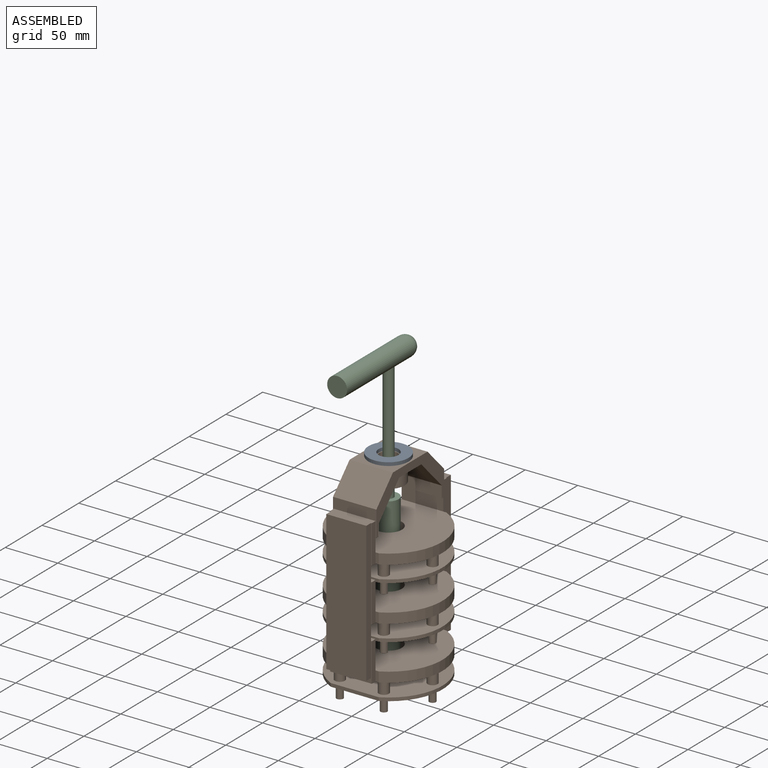
[diagram: assembled view]
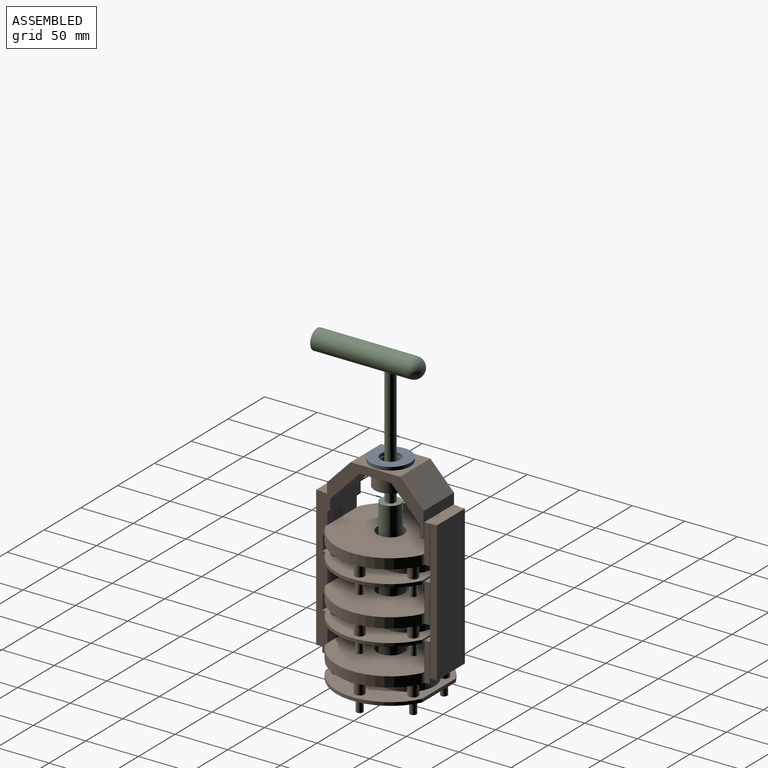
[diagram: assembled view, second angle]
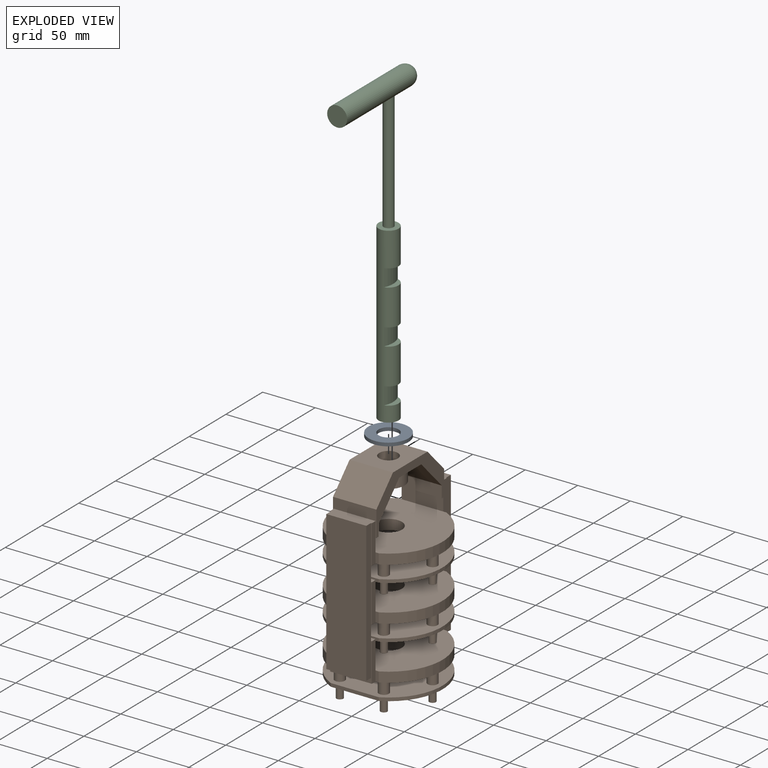
[diagram: exploded view]
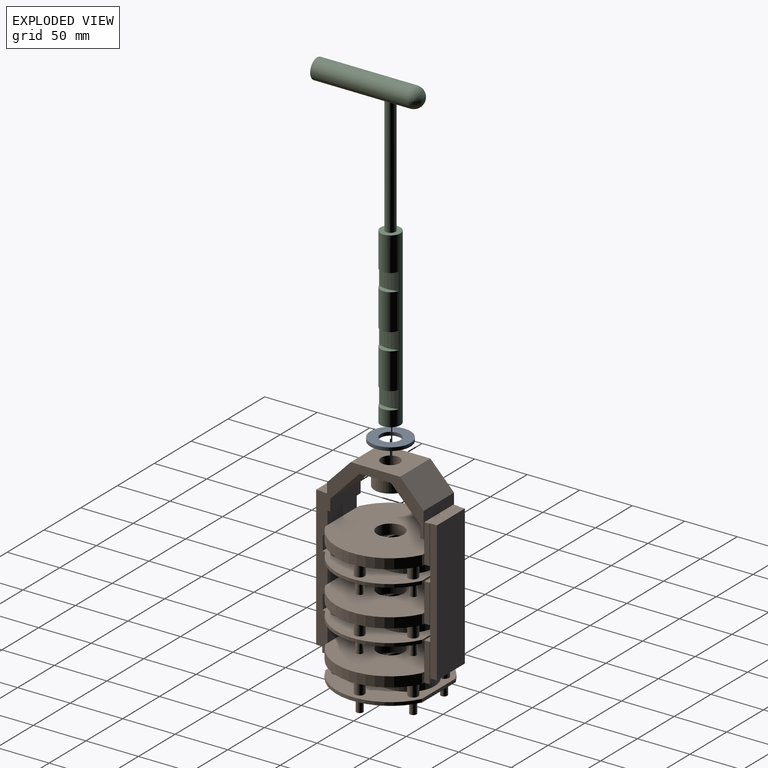
[diagram: exploded view, second angle]
ASSEMBLY  parts=3 mates=2
PART A: 4 faces, bbox 38.1x3.2x38.1 mm
  f0: cylinder r=9.53mm len=19.05mm, axis (0,-1,0), area 190mm2, adj f2,f3
  f1: cylinder r=19.05mm len=38.1mm, axis (0,-1,0), area 380mm2, adj f2,f3
  f2: plane 38.1x38.1mm, normal (0,1,0), area 855.1mm2, adj f0,f1
  f3: plane 38.1x38.1mm, normal (0,-1,0), area 855.1mm2, adj f0,f1
PART B: 184 faces, bbox 102.9x200x114.9 mm
  f0: plane 41.28x24.28mm, normal (0,0,-1), area 435.1mm2, adj f5,f6,f13,f14,f37,f39,f40
  f1: plane 41.28x24.28mm, normal (0,0,1), area 435.1mm2, adj f3,f12,f13,f14,f31,f34,f35
  f2: plane 29.93x17.75mm, normal (0,1,0), area 253.9mm2, adj f8,f10,f13,f15
  f3: plane 41.28x23.35mm, normal (0,-0.69,0.72), area 1339.5mm2, adj f1,f4,f13,f14
  f4: plane 46.99x41.28mm, normal (0,-1,0), area 1691.2mm2, adj f3,f5,f13,f14,f17
  f5: plane 41.28x23.35mm, normal (0,-0.69,-0.72), area 1339.5mm2, adj f0,f4,f13,f14
  f6: plane 41.28x3.18mm, normal (0,1,0), area 131mm2, adj f0,f7,f13,f14,f18
  f7: plane 41.28x11.11mm, normal (0,0,1), area 458.7mm2, adj f6,f8,f13,f14
  f8: plane 41.28x28.89mm, normal (0,0.69,0.72), area 1656.2mm2, adj f2,f7,f9,f13,f14,f15
  f9: plane 29.93x17.75mm, normal (0,1,0), area 253.9mm2, adj f8,f10,f14,f15
  f10: plane 41.28x28.89mm, normal (0,0.69,-0.72), area 1656.2mm2, adj f2,f9,f11,f13,f14,f15
  f11: plane 41.28x11.11mm, normal (0,0,-1), area 458.7mm2, adj f10,f12,f13,f14
  f12: plane 41.28x3.18mm, normal (0,1,0), area 131mm2, adj f1,f11,f13,f14,f19
  f13: plane 92.08x47.63mm, normal (1,0,0), area 1235.4mm2, adj f0,f1,f2,f3,f4,f5,f6,f7
  f14: plane 92.08x47.63mm, normal (-1,0,0), area 1235.4mm2, adj f0,f1,f3,f4,f5,f6,f7,f8
  f15: cylinder r=15.24mm len=30.48mm, axis (0,-1,0), area 1335.5mm2, adj f2,f8,f9,f10,f16
  f16: plane 30.48x30.48mm, normal (0,1,0), area 481.4mm2, adj f15,f17
  f17: cylinder r=8.89mm len=21.59mm, axis (0,-1,0), area 1206mm2, adj f4,f16
  f18: plane 39.69x12.7mm, normal (0,0,1), area 504mm2, adj f6,f39,f40,f47
  f19: plane 39.69x12.7mm, normal (0,0,-1), area 504mm2, adj f12,f34,f35,f47
  f20: plane 36.51x0.79mm, normal (0,0,1), area 29mm2, adj f31,f32,f35,f179
  f21: plane 36.51x0.79mm, normal (0,0,-1), area 29mm2, adj f32,f37,f40,f183
  f22: plane 45.87x3.18mm, normal (0,0,1), area 82.6mm2, adj f53,f55,f56,f59,f85,f88,f89
  f23: plane 45.87x3.18mm, normal (0,0,-1), area 82.6mm2, adj f53,f55,f56,f59,f91,f93,f94
  f24: cylinder r=4.76mm len=12.7mm, axis (0,-1,0), area 296.2mm2, adj f32,f48,f49,f51,f56
  f25: cylinder r=4.76mm len=12.7mm, axis (0,-1,0), area 296.2mm2, adj f32,f48,f49,f51,f56
  f26: cylinder r=4.76mm len=12.7mm, axis (0,-1,0), area 380mm2, adj f32,f56
  f27: cylinder r=4.76mm len=12.7mm, axis (0,-1,0), area 380mm2, adj f32,f56
  f28: cylinder r=4.76mm len=12.7mm, axis (0,-1,0), area 380mm2, adj f32,f56
  f29: cylinder r=4.76mm len=12.7mm, axis (0,-1,0), area 380mm2, adj f32,f56
  f30: plane 47.63x44.28mm, normal (0,1,0), area 1381.8mm2, adj f46,f50
  f31: plane 39.69x11.43mm, normal (0,-1,0), area 443.5mm2, adj f1,f20,f33,f34,f35,f177,f178,f179
  f32: plane 102.87x102.24mm, normal (0,1,0), area 5872.3mm2, adj f20,f21,f24,f25,f26,f27,f28,f29
  f33: plane 36.51x0.79mm, normal (0,0,1), area 29mm2, adj f31,f32,f34,f178
  f34: plane 36.51x5.08mm, normal (1,0,0), area 185.5mm2, adj f1,f19,f31,f32,f33,f42
  f35: plane 36.51x5.08mm, normal (-1,0,0), area 185.5mm2, adj f1,f19,f20,f31,f32,f36
  f36: plane 9.53x3.09mm, normal (0,0,1), area 29.5mm2, adj f32,f35,f45,f47
  f37: plane 39.69x11.43mm, normal (0,-1,0), area 443.5mm2, adj f0,f21,f38,f39,f40,f180,f182,f183
  f38: plane 36.51x0.79mm, normal (0,0,-1), area 29mm2, adj f32,f37,f39,f182
  f39: plane 36.51x5.08mm, normal (1,0,0), area 185.5mm2, adj f0,f18,f32,f37,f38,f44
  f40: plane 36.51x5.08mm, normal (-1,0,0), area 185.5mm2, adj f0,f18,f21,f32,f37,f41
  f41: plane 9.53x3.09mm, normal (0,0,-1), area 29.5mm2, adj f32,f40,f45,f47
  f42: plane 9.53x3.09mm, normal (0,0,1), area 29.5mm2, adj f32,f34,f43,f47
  f43: cylinder r=51.44mm len=92.08mm, axis (0,1,0), area 1086.2mm2, adj f32,f42,f44,f47
  f44: plane 9.53x3.09mm, normal (0,0,-1), area 29.5mm2, adj f32,f39,f43,f47
  f45: cylinder r=51.44mm len=92.08mm, axis (0,1,0), area 1086.2mm2, adj f32,f36,f41,f47
  f46: cylinder r=12.7mm len=25.4mm, axis (0,1,0), area 760.1mm2, adj f30,f32,f47,f52
  f47: plane 102.87x92.08mm, normal (0,-1,0), area 7470.8mm2, adj f18,f19,f36,f41,f42,f43,f44,f45
  f48: cylinder r=25.4mm len=50.8mm, axis (0,-1,0), area 1270.7mm2, adj f24,f25,f32,f51,f52
  f49: cylinder r=25.4mm len=32.39mm, axis (0,-1,0), area 401.4mm2, adj f24,f25,f32,f51
  f50: cylinder r=23.81mm len=47.63mm, axis (0,-1,0), area 1710.1mm2, adj f30,f51,f52
  f51: plane 50.8x50.8mm, normal (0,1,0), area 231.2mm2, adj f24,f25,f48,f49,f50
  f52: plane 24.34x4.93mm, normal (0,-1,0), area 38.9mm2, adj f46,f48,f50
  f53: cylinder r=51.44mm len=92.08mm, axis (0,1,0), area 362.1mm2, adj f22,f23,f56,f59
  f54: cylinder r=12.7mm len=25.4mm, axis (0,1,0), area 253.4mm2, adj f56,f59
  f55: cylinder r=51.44mm len=92.08mm, axis (0,1,0), area 362.1mm2, adj f22,f23,f56,f59
  f56: plane 102.87x92.08mm, normal (0,-1,0), area 7043.3mm2, adj f22,f23,f24,f25,f26,f27,f28,f29
  f57: plane 6.35x6.35mm, normal (0,1,0), area 31.7mm2, adj f58
  f58: cylinder r=3.17mm len=12.7mm, axis (0,-1,0), area 253.4mm2, adj f57,f59
  f59: plane 102.87x92.08mm, normal (0,1,0), area 7280.8mm2, adj f22,f23,f53,f54,f55,f58,f61,f63
  f60: plane 6.35x6.35mm, normal (0,1,0), area 31.7mm2, adj f61
  f61: cylinder r=3.17mm len=12.7mm, axis (0,-1,0), area 253.4mm2, adj f59,f60
  f62: plane 6.35x6.35mm, normal (0,1,0), area 31.7mm2, adj f63
  f63: cylinder r=3.17mm len=12.7mm, axis (0,-1,0), area 253.4mm2, adj f59,f62
  f64: plane 6.35x6.35mm, normal (0,1,0), area 31.7mm2, adj f65
  f65: cylinder r=3.17mm len=12.7mm, axis (0,-1,0), area 253.4mm2, adj f59,f64
  f66: plane 6.35x6.35mm, normal (0,1,0), area 31.7mm2, adj f67
  f67: cylinder r=3.17mm len=12.7mm, axis (0,-1,0), area 253.4mm2, adj f59,f66
  f68: plane 6.35x6.35mm, normal (0,1,0), area 31.7mm2, adj f69
  f69: cylinder r=3.17mm len=12.7mm, axis (0,-1,0), area 253.4mm2, adj f59,f68
  f70: plane 38.1x14.29mm, normal (0,0,-1), area 544.4mm2, adj f32,f85,f178,f179
  f71: plane 38.1x14.29mm, normal (0,0,1), area 544.4mm2, adj f32,f91,f182,f183
  f72: plane 39.69x25.4mm, normal (0,0,-1), area 1008.1mm2, adj f59,f88,f89,f101
  f73: plane 39.69x25.4mm, normal (0,0,1), area 1008.1mm2, adj f59,f93,f94,f101
  f74: plane 36.51x0.79mm, normal (0,0,1), area 29mm2, adj f85,f86,f89,f179
  f75: plane 36.51x0.79mm, normal (0,0,-1), area 29mm2, adj f86,f91,f94,f183
  f76: plane 45.87x3.18mm, normal (0,0,1), area 82.6mm2, adj f107,f109,f110,f113,f137,f139,f140
  f77: plane 45.87x3.18mm, normal (0,0,-1), area 82.6mm2, adj f107,f109,f110,f113,f142,f143,f144
  f78: cylinder r=4.76mm len=12.7mm, axis (0,-1,0), area 296.2mm2, adj f86,f102,f103,f105,f110
  f79: cylinder r=4.76mm len=12.7mm, axis (0,-1,0), area 296.2mm2, adj f86,f102,f103,f105,f110
  f80: cylinder r=4.76mm len=12.7mm, axis (0,-1,0), area 380mm2, adj f86,f110
  f81: cylinder r=4.76mm len=12.7mm, axis (0,-1,0), area 380mm2, adj f86,f110
  f82: cylinder r=4.76mm len=12.7mm, axis (0,-1,0), area 380mm2, adj f86,f110
  f83: cylinder r=4.76mm len=12.7mm, axis (0,-1,0), area 380mm2, adj f86,f110
  f84: plane 47.63x44.28mm, normal (0,1,0), area 1381.8mm2, adj f100,f104
  f85: plane 39.69x5.08mm, normal (0,-1,0), area 201.6mm2, adj f22,f70,f74,f87,f88,f89
  f86: plane 102.87x102.24mm, normal (0,1,0), area 5872.3mm2, adj f74,f75,f78,f79,f80,f81,f82,f83
  f87: plane 36.51x0.79mm, normal (0,0,1), area 29mm2, adj f85,f86,f88,f178
  f88: plane 36.51x5.08mm, normal (1,0,0), area 185.5mm2, adj f22,f72,f85,f86,f87,f96
  f89: plane 36.51x5.08mm, normal (-1,0,0), area 185.5mm2, adj f22,f72,f74,f85,f86,f90
  f90: plane 9.53x3.09mm, normal (0,0,1), area 29.5mm2, adj f86,f89,f99,f101
  f91: plane 39.69x5.08mm, normal (0,-1,0), area 201.6mm2, adj f23,f71,f75,f92,f93,f94
  f92: plane 36.51x0.79mm, normal (0,0,-1), area 29mm2, adj f86,f91,f93,f182
  f93: plane 36.51x5.08mm, normal (1,0,0), area 185.5mm2, adj f23,f73,f86,f91,f92,f98
  f94: plane 36.51x5.08mm, normal (-1,0,0), area 185.5mm2, adj f23,f73,f75,f86,f91,f95
  f95: plane 9.53x3.09mm, normal (0,0,-1), area 29.5mm2, adj f86,f94,f99,f101
  f96: plane 9.53x3.09mm, normal (0,0,1), area 29.5mm2, adj f86,f88,f97,f101
  f97: cylinder r=51.44mm len=92.08mm, axis (0,1,0), area 1086.2mm2, adj f86,f96,f98,f101
  f98: plane 9.53x3.09mm, normal (0,0,-1), area 29.5mm2, adj f86,f93,f97,f101
  f99: cylinder r=51.44mm len=92.08mm, axis (0,1,0), area 1086.2mm2, adj f86,f90,f95,f101
  f100: cylinder r=12.7mm len=25.4mm, axis (0,1,0), area 760.1mm2, adj f84,f86,f101,f106
  f101: plane 102.87x92.08mm, normal (0,-1,0), area 7470.8mm2, adj f72,f73,f90,f95,f96,f97,f98,f99
  f102: cylinder r=25.4mm len=50.8mm, axis (0,-1,0), area 1270.7mm2, adj f78,f79,f86,f105,f106
  f103: cylinder r=25.4mm len=32.39mm, axis (0,-1,0), area 401.4mm2, adj f78,f79,f86,f105
  f104: cylinder r=23.81mm len=47.63mm, axis (0,-1,0), area 1710.1mm2, adj f84,f105,f106
  f105: plane 50.8x50.8mm, normal (0,1,0), area 231.2mm2, adj f78,f79,f102,f103,f104
  f106: plane 24.34x4.93mm, normal (0,-1,0), area 38.9mm2, adj f100,f102,f104
  f107: cylinder r=51.44mm len=92.08mm, axis (0,1,0), area 362.1mm2, adj f76,f77,f110,f113
  f108: cylinder r=12.7mm len=25.4mm, axis (0,1,0), area 253.4mm2, adj f110,f113
  f109: cylinder r=51.44mm len=92.08mm, axis (0,1,0), area 362.1mm2, adj f76,f77,f110,f113
  f110: plane 102.87x92.08mm, normal (0,-1,0), area 7043.3mm2, adj f76,f77,f78,f79,f80,f81,f82,f83
  f111: plane 6.35x6.35mm, normal (0,1,0), area 31.7mm2, adj f112
  f112: cylinder r=3.17mm len=12.7mm, axis (0,-1,0), area 253.4mm2, adj f111,f113
  f113: plane 102.87x92.08mm, normal (0,1,0), area 7280.8mm2, adj f76,f77,f107,f108,f109,f112,f115,f117
  f114: plane 6.35x6.35mm, normal (0,1,0), area 31.7mm2, adj f115
  f115: cylinder r=3.17mm len=12.7mm, axis (0,-1,0), area 253.4mm2, adj f113,f114
  f116: plane 6.35x6.35mm, normal (0,1,0), area 31.7mm2, adj f117
  f117: cylinder r=3.17mm len=12.7mm, axis (0,-1,0), area 253.4mm2, adj f113,f116
  f118: plane 6.35x6.35mm, normal (0,1,0), area 31.7mm2, adj f119
  f119: cylinder r=3.17mm len=12.7mm, axis (0,-1,0), area 253.4mm2, adj f113,f118
  f120: plane 6.35x6.35mm, normal (0,1,0), area 31.7mm2, adj f121
  f121: cylinder r=3.17mm len=12.7mm, axis (0,-1,0), area 253.4mm2, adj f113,f120
  f122: plane 6.35x6.35mm, normal (0,1,0), area 31.7mm2, adj f123
  f123: cylinder r=3.17mm len=12.7mm, axis (0,-1,0), area 253.4mm2, adj f113,f122
  f124: plane 38.1x14.29mm, normal (0,0,-1), area 544.4mm2, adj f86,f137,f178,f179
  f125: plane 38.1x14.29mm, normal (0,0,1), area 544.4mm2, adj f86,f142,f182,f183
  f126: plane 39.69x25.4mm, normal (0,0,-1), area 1008.1mm2, adj f113,f139,f140,f151
  f127: plane 39.69x25.4mm, normal (0,0,1), area 1008.1mm2, adj f113,f143,f144,f151
  f128: plane 39.69x36.51mm, normal (0,0,-1), area 239.4mm2, adj f138,f142,f143,f144,f181,f182,f183
  f129: plane 39.69x36.51mm, normal (0,0,1), area 239.4mm2, adj f137,f138,f139,f140,f176,f178,f179
  f130: cylinder r=4.76mm len=12.7mm, axis (0,-1,0), area 296.2mm2, adj f138,f152,f153,f155,f162
  f131: cylinder r=4.76mm len=12.7mm, axis (0,-1,0), area 296.2mm2, adj f138,f152,f153,f155,f162
  f132: cylinder r=4.76mm len=12.7mm, axis (0,-1,0), area 380mm2, adj f138,f162
  f133: cylinder r=4.76mm len=12.7mm, axis (0,-1,0), area 380mm2, adj f138,f162
  f134: cylinder r=4.76mm len=12.7mm, axis (0,-1,0), area 380mm2, adj f138,f162
  f135: cylinder r=4.76mm len=12.7mm, axis (0,-1,0), area 380mm2, adj f138,f162
  f136: plane 47.63x44.28mm, normal (0,1,0), area 1381.8mm2, adj f150,f154
  f137: plane 39.69x5.08mm, normal (0,-1,0), area 201.6mm2, adj f76,f124,f129,f139,f140
  f138: plane 102.87x102.24mm, normal (0,1,0), area 5872.3mm2, adj f128,f129,f130,f131,f132,f133,f134,f135
  f139: plane 36.51x5.08mm, normal (1,0,0), area 185.5mm2, adj f76,f126,f129,f137,f138,f146
  f140: plane 36.51x5.08mm, normal (-1,0,0), area 185.5mm2, adj f76,f126,f129,f137,f138,f141
  f141: plane 9.53x3.09mm, normal (0,0,1), area 29.5mm2, adj f138,f140,f149,f151
  f142: plane 39.69x5.08mm, normal (0,-1,0), area 201.6mm2, adj f77,f125,f128,f143,f144
  f143: plane 36.51x5.08mm, normal (1,0,0), area 185.5mm2, adj f77,f127,f128,f138,f142,f148
  f144: plane 36.51x5.08mm, normal (-1,0,0), area 185.5mm2, adj f77,f127,f128,f138,f142,f145
  f145: plane 9.53x3.09mm, normal (0,0,-1), area 29.5mm2, adj f138,f144,f149,f151
  f146: plane 9.53x3.09mm, normal (0,0,1), area 29.5mm2, adj f138,f139,f147,f151
  f147: cylinder r=51.44mm len=92.08mm, axis (0,1,0), area 1086.2mm2, adj f138,f146,f148,f151
  f148: plane 9.53x3.09mm, normal (0,0,-1), area 29.5mm2, adj f138,f143,f147,f151
  f149: cylinder r=51.44mm len=92.08mm, axis (0,1,0), area 1086.2mm2, adj f138,f141,f145,f151
  f150: cylinder r=12.7mm len=25.4mm, axis (0,1,0), area 760.1mm2, adj f136,f138,f151,f156
  f151: plane 102.87x92.08mm, normal (0,-1,0), area 7470.8mm2, adj f126,f127,f141,f145,f146,f147,f148,f149
  f152: cylinder r=25.4mm len=50.8mm, axis (0,-1,0), area 1270.7mm2, adj f130,f131,f138,f155,f156
  f153: cylinder r=25.4mm len=32.39mm, axis (0,-1,0), area 401.4mm2, adj f130,f131,f138,f155
  f154: cylinder r=23.81mm len=47.63mm, axis (0,-1,0), area 1710.1mm2, adj f136,f155,f156
  f155: plane 50.8x50.8mm, normal (0,1,0), area 231.2mm2, adj f130,f131,f152,f153,f154
  f156: plane 24.34x4.93mm, normal (0,-1,0), area 38.9mm2, adj f150,f152,f154
  f157: plane 45.87x3.18mm, normal (0,0,1), area 145.7mm2, adj f158,f161,f162,f165
  f158: cylinder r=51.44mm len=92.08mm, axis (0,1,0), area 362.1mm2, adj f157,f159,f162,f165
  f159: plane 45.87x3.18mm, normal (0,0,-1), area 145.7mm2, adj f158,f161,f162,f165
  f160: cylinder r=12.7mm len=25.4mm, axis (0,1,0), area 253.4mm2, adj f162,f165
  f161: cylinder r=51.44mm len=92.08mm, axis (0,1,0), area 362.1mm2, adj f157,f159,f162,f165
  f162: plane 102.87x92.08mm, normal (0,-1,0), area 7043.3mm2, adj f130,f131,f132,f133,f134,f135,f157,f158
  f163: plane 6.35x6.35mm, normal (0,1,0), area 31.7mm2, adj f164
  f164: cylinder r=3.17mm len=12.7mm, axis (0,-1,0), area 253.4mm2, adj f163,f165
  f165: plane 102.87x92.08mm, normal (0,1,0), area 7280.8mm2, adj f157,f158,f159,f160,f161,f164,f167,f169
  f166: plane 6.35x6.35mm, normal (0,1,0), area 31.7mm2, adj f167
  f167: cylinder r=3.17mm len=12.7mm, axis (0,-1,0), area 253.4mm2, adj f165,f166
  f168: plane 6.35x6.35mm, normal (0,1,0), area 31.7mm2, adj f169
  f169: cylinder r=3.17mm len=12.7mm, axis (0,-1,0), area 253.4mm2, adj f165,f168
  f170: plane 6.35x6.35mm, normal (0,1,0), area 31.7mm2, adj f171
  f171: cylinder r=3.17mm len=12.7mm, axis (0,-1,0), area 253.4mm2, adj f165,f170
  f172: plane 6.35x6.35mm, normal (0,1,0), area 31.7mm2, adj f173
  f173: cylinder r=3.17mm len=12.7mm, axis (0,-1,0), area 253.4mm2, adj f165,f172
  f174: plane 6.35x6.35mm, normal (0,1,0), area 31.7mm2, adj f175
  f175: cylinder r=3.17mm len=12.7mm, axis (0,-1,0), area 253.4mm2, adj f165,f174
  f176: plane 38.1x6.35mm, normal (0,1,0), area 241.9mm2, adj f129,f177,f178,f179
  f177: plane 133.35x38.1mm, normal (0,0,1), area 5080.6mm2, adj f31,f176,f178,f179
  f178: plane 133.35x6.35mm, normal (1,0,0), area 846.8mm2, adj f31,f33,f70,f87,f124,f129,f176,f177
  f179: plane 133.35x6.35mm, normal (-1,0,0), area 846.8mm2, adj f20,f31,f70,f74,f124,f129,f176,f177
  f180: plane 133.35x38.1mm, normal (0,0,-1), area 5080.6mm2, adj f37,f181,f182,f183
  f181: plane 38.1x6.35mm, normal (0,1,0), area 241.9mm2, adj f128,f180,f182,f183
  f182: plane 133.35x6.35mm, normal (1,0,0), area 846.8mm2, adj f37,f38,f71,f92,f125,f128,f180,f181
  f183: plane 133.35x6.35mm, normal (-1,0,0), area 846.8mm2, adj f21,f37,f71,f75,f125,f128,f180,f181
PART C: 16 faces, bbox 101.6x295.3x19.1 mm
  f0: plane 18.47x7.19mm, normal (0,1,0), area 72.3mm2, adj f1,f7
  f1: cylinder r=21.27mm len=18.47mm, axis (0,-1,0), area 315.4mm2, adj f0,f2,f7
  f2: plane 18.47x7.19mm, normal (0,-1,0), area 72.3mm2, adj f1,f7
  f3: plane 18.47x7.19mm, normal (0,1,0), area 72.3mm2, adj f4,f7
  f4: cylinder r=21.27mm len=18.47mm, axis (0,-1,0), area 315.4mm2, adj f3,f5,f7
  f5: plane 18.47x7.19mm, normal (0,-1,0), area 72.3mm2, adj f4,f7
  f6: cylinder r=4.76mm len=112.4mm, axis (0,1,0), area 3344mm2, adj f8,f13
  f7: cylinder r=9.53mm len=165.1mm, axis (0,1,0), area 8632.1mm2, adj f0,f1,f2,f3,f4,f5,f8,f9
  f8: plane 19.05x19.05mm, normal (0,-1,0), area 213.8mm2, adj f6,f7
  f9: plane 19.05x19.05mm, normal (0,1,0), area 285mm2, adj f7
  f10: cylinder r=21.27mm len=18.47mm, axis (0,-1,0), area 315.4mm2, adj f7,f11,f12
  f11: plane 18.47x7.19mm, normal (0,-1,0), area 72.3mm2, adj f7,f10
  f12: plane 18.47x7.19mm, normal (0,1,0), area 72.3mm2, adj f7,f10
  f13: cylinder r=9.53mm len=92.08mm, axis (1,0,0), area 5436.6mm2, adj f6,f14,f15
  f14: plane 19.05x19.05mm, normal (-1,0,0), area 285mm2, adj f13
  f15: sphere r=9.53mm, area 570mm2, adj f13
PLACE A rot(axis=(-1,0,0),90deg) t=(-19.05,-895.35,-336.55)mm
PLACE B rot(axis=(-1,0,0),90deg) t=(-19.05,-895.35,-336.55)mm
PLACE C rot(axis=(-0.58,-0.58,0.58),120deg) t=(895.35,-19.05,-336.55)mm
MATE fastened A.f0 <-> B.f15  axis (0,0,-1) through (0,0,-3.17)mm
MATE fastened C.f6 <-> B.f15  axis (0,0,-1) through (0,0,-203.2)mm
